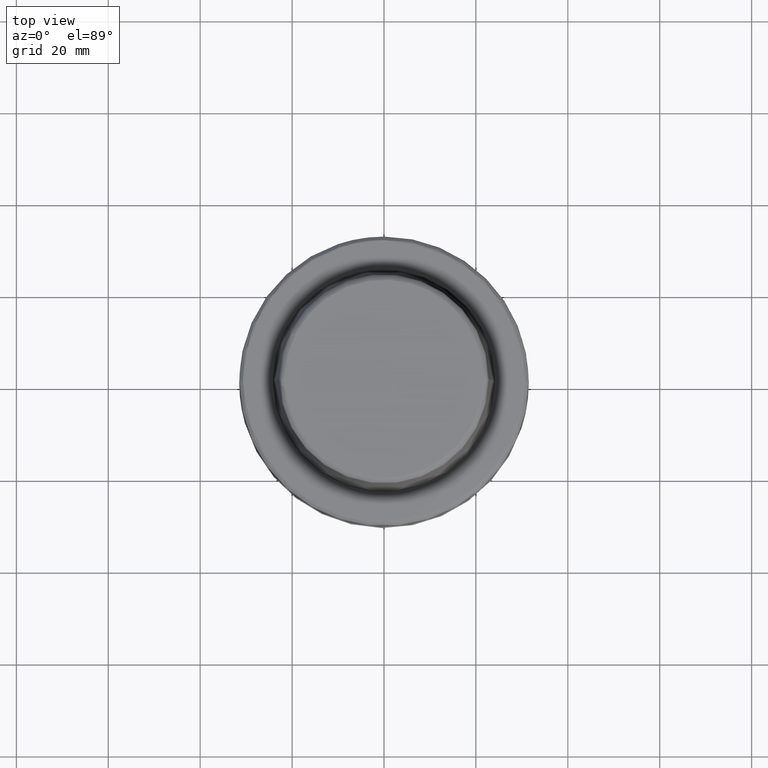
[diagram: clean part render]
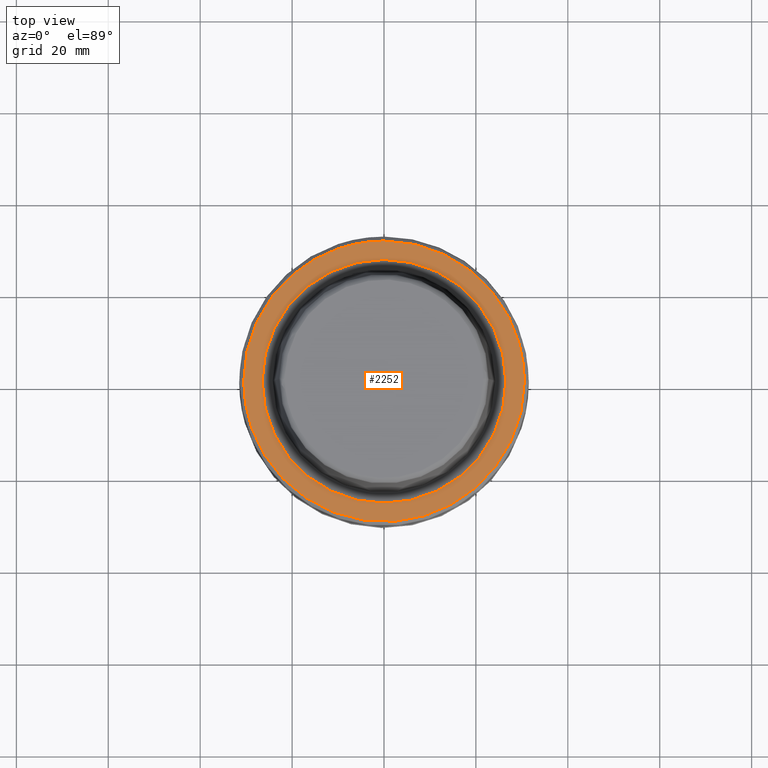
[diagram: same view with one face highlighted and labeled with its STEP entity id]
A machine part, top view. The second image highlights one B-rep face of the part: STEP entity #2252.
In plain terms, the highlighted planar face has unit normal (0, 0, -1).
Its self-contained STEP definition (entity closure, byte-faithful):
#55 = EDGE_CURVE ( 'NONE', #3081, #1767, #3581, .T. ) ;
#65 = DIRECTION ( 'NONE',  ( -1.000000000000000000, 0.0000000000000000000, 0.0000000000000000000 ) ) ;
#67 = AXIS2_PLACEMENT_3D ( 'NONE', #2692, #2746, #1475 ) ;
#84 = EDGE_CURVE ( 'NONE', #3375, #3026, #1876, .T. ) ;
#387 = CARTESIAN_POINT ( 'NONE',  ( 0.0000000000000000000, 0.0000000000000000000, -2.168404344971008900E-016 ) ) ;
#395 = VERTEX_POINT ( 'NONE', #676 ) ;
#465 = DIRECTION ( 'NONE',  ( 0.0000000000000000000, -0.0000000000000000000, 1.000000000000000000 ) ) ;
#479 = EDGE_LOOP ( 'NONE', ( #586, #2368, #2014, #708 ) ) ;
#535 = CARTESIAN_POINT ( 'NONE',  ( -24.25921820539882700, 23.90791019683933500, -4.930845767045396800E-021 ) ) ;
#586 = ORIENTED_EDGE ( 'NONE', *, *, #84, .F. ) ;
#590 = CARTESIAN_POINT ( 'NONE',  ( 0.0000000000000000000, 0.0000000000000000000, 0.0000000000000000000 ) ) ;
#656 = CARTESIAN_POINT ( 'NONE',  ( -30.53431457000553100, 0.0000000000000000000, -1.643840724592991500E-021 ) ) ;
#676 = CARTESIAN_POINT ( 'NONE',  ( 30.53431457000553100, 0.0000000000000000000, -1.643840724592991500E-021 ) ) ;
#708 = ORIENTED_EDGE ( 'NONE', *, *, #2318, .F. ) ;
#752 = CARTESIAN_POINT ( 'NONE',  ( 0.0000000000000000000, 30.53431457506332300, 0.0000000000000000000 ) ) ;
#762 = ORIENTED_EDGE ( 'NONE', *, *, #55, .F. ) ;
#887 = CARTESIAN_POINT ( 'NONE',  ( 0.0000000000000000000, 30.53431457506332300, 0.0000000000000000000 ) ) ;
#1081 = CARTESIAN_POINT ( 'NONE',  ( 30.53431457506279800, 15.26715728753139900, -4.930845767045396100E-021 ) ) ;
#1150 = CARTESIAN_POINT ( 'NONE',  ( -30.53431457000553100, 0.0000000000000000000, -1.643840724592991500E-021 ) ) ;
#1271 = ORIENTED_EDGE ( 'NONE', *, *, #1273, .F. ) ;
#1273 = EDGE_CURVE ( 'NONE', #1767, #3081, #1878, .T. ) ;
#1331 = EDGE_CURVE ( 'NONE', #395, #3289, #1537, .T. ) ;
#1473 = FACE_BOUND ( 'NONE', #3924, .T. ) ;
#1475 = DIRECTION ( 'NONE',  ( 1.000000000000000000, 0.0000000000000000000, 0.0000000000000000000 ) ) ;
#1537 =( BOUNDED_CURVE ( )  B_SPLINE_CURVE ( 3, ( #3570, #2322, #2442, #656 ),
 .UNSPECIFIED., .F., .T. ) 
 B_SPLINE_CURVE_WITH_KNOTS ( ( 4, 4 ),
 ( 0.0000000000000000000, 1.000000000000000000 ),
 .UNSPECIFIED. ) 
 CURVE ( )  GEOMETRIC_REPRESENTATION_ITEM ( )  RATIONAL_B_SPLINE_CURVE ( ( 0.9777428142945264700, 0.3259142714315085800, 0.3259142714315085800, 0.9777428142945264700 ) ) 
 REPRESENTATION_ITEM ( '' )  );
#1649 = CARTESIAN_POINT ( 'NONE',  ( -26.52499999999999900, 3.248375634738354300E-015, -2.168404344971008900E-016 ) ) ;
#1684 = CARTESIAN_POINT ( 'NONE',  ( 30.90072634999999900, -30.90074373899999900, 0.0000000000000000000 ) ) ;
#1767 = VERTEX_POINT ( 'NONE', #3593 ) ;
#1876 = CIRCLE ( 'NONE', #3173, 30.53431457506332300 ) ;
#1878 = CIRCLE ( 'NONE', #67, 26.52499999999999900 ) ;
#2013 = DIRECTION ( 'NONE',  ( 0.0000000000000000000, 0.0000000000000000000, -1.000000000000000000 ) ) ;
#2014 = ORIENTED_EDGE ( 'NONE', *, *, #1331, .F. ) ;
#2252 = ADVANCED_FACE ( 'NONE', ( #1473, #3192 ), #3613, .F. ) ;
#2318 = EDGE_CURVE ( 'NONE', #3026, #395, #2578, .T. ) ;
#2322 = CARTESIAN_POINT ( 'NONE',  ( 30.53431457506280100, -61.06862915012560200, -4.932198580512553100E-021 ) ) ;
#2368 = ORIENTED_EDGE ( 'NONE', *, *, #2907, .F. ) ;
#2389 = DIRECTION ( 'NONE',  ( 1.000000000000000000, 0.0000000000000000000, 0.0000000000000000000 ) ) ;
#2442 = CARTESIAN_POINT ( 'NONE',  ( -30.53431457506280100, -61.06862915012560200, -4.932198580512553100E-021 ) ) ;
#2561 = AXIS2_PLACEMENT_3D ( 'NONE', #1684, #2013, #65 ) ;
#2578 =( BOUNDED_CURVE ( )  B_SPLINE_CURVE ( 3, ( #752, #3321, #1081, #3341 ),
 .UNSPECIFIED., .F., .T. ) 
 B_SPLINE_CURVE_WITH_KNOTS ( ( 4, 4 ),
 ( 0.5000000000000000000, 1.000000000000000000 ),
 .UNSPECIFIED. ) 
 CURVE ( )  GEOMETRIC_REPRESENTATION_ITEM ( )  RATIONAL_B_SPLINE_CURVE ( ( 0.4888714071472664000, 0.4888714071472664000, 0.6518285428630219400, 0.9777428142945329100 ) ) 
 REPRESENTATION_ITEM ( '' )  );
#2584 = CARTESIAN_POINT ( 'NONE',  ( -10.00000000000000000, 28.85038756521293700, 0.0000000000000000000 ) ) ;
#2692 = CARTESIAN_POINT ( 'NONE',  ( 0.0000000000000000000, 0.0000000000000000000, -2.168404344971008900E-016 ) ) ;
#2720 = AXIS2_PLACEMENT_3D ( 'NONE', #387, #465, #2389 ) ;
#2746 = DIRECTION ( 'NONE',  ( 0.0000000000000000000, -0.0000000000000000000, 1.000000000000000000 ) ) ;
#2792 = CARTESIAN_POINT ( 'NONE',  ( -10.00000000000000000, 28.85038756521293700, 0.0000000000000000000 ) ) ;
#2907 = EDGE_CURVE ( 'NONE', #3289, #3375, #3950, .T. ) ;
#3026 = VERTEX_POINT ( 'NONE', #887 ) ;
#3081 = VERTEX_POINT ( 'NONE', #1649 ) ;
#3123 = DIRECTION ( 'NONE',  ( -1.000000000000000000, 0.0000000000000000000, 0.0000000000000000000 ) ) ;
#3173 = AXIS2_PLACEMENT_3D ( 'NONE', #590, #4063, #3123 ) ;
#3192 = FACE_OUTER_BOUND ( 'NONE', #479, .T. ) ;
#3289 = VERTEX_POINT ( 'NONE', #1150 ) ;
#3321 = CARTESIAN_POINT ( 'NONE',  ( 20.35620971670853400, 30.53431457506280100, -4.930845767045397600E-021 ) ) ;
#3341 = CARTESIAN_POINT ( 'NONE',  ( 30.53431457000553100, 0.0000000000000000000, -1.643840724592991500E-021 ) ) ;
#3375 = VERTEX_POINT ( 'NONE', #2584 ) ;
#3570 = CARTESIAN_POINT ( 'NONE',  ( 30.53431457000553100, 0.0000000000000000000, -1.643840724592991500E-021 ) ) ;
#3581 = CIRCLE ( 'NONE', #2720, 26.52499999999999900 ) ;
#3593 = CARTESIAN_POINT ( 'NONE',  ( 26.52499999999999900, 0.0000000000000000000, -2.168404344971008900E-016 ) ) ;
#3613 = PLANE ( 'NONE',  #2561 ) ;
#3924 = EDGE_LOOP ( 'NONE', ( #1271, #762 ) ) ;
#3950 =( BOUNDED_CURVE ( )  B_SPLINE_CURVE ( 3, ( #4079, #4065, #535, #2792 ),
 .UNSPECIFIED., .F., .F. ) 
 B_SPLINE_CURVE_WITH_KNOTS ( ( 4, 4 ),
 ( 0.0000000000000000000, 0.4158032670362263300 ),
 .UNSPECIFIED. ) 
 CURVE ( )  GEOMETRIC_REPRESENTATION_ITEM ( )  RATIONAL_B_SPLINE_CURVE ( ( 0.9777428142945329100, 0.7067103766246254400, 0.5483741120106578900, 0.5027340204526302700 ) ) 
 REPRESENTATION_ITEM ( '' )  );
#4063 = DIRECTION ( 'NONE',  ( -0.0000000000000000000, -0.0000000000000000000, -1.000000000000000000 ) ) ;
#4065 = CARTESIAN_POINT ( 'NONE',  ( -30.53431457506280100, 11.71029885168192700, -4.930845767045396800E-021 ) ) ;
#4079 = CARTESIAN_POINT ( 'NONE',  ( -30.53431457000553100, 0.0000000000000000000, -1.643840724592991500E-021 ) ) ;